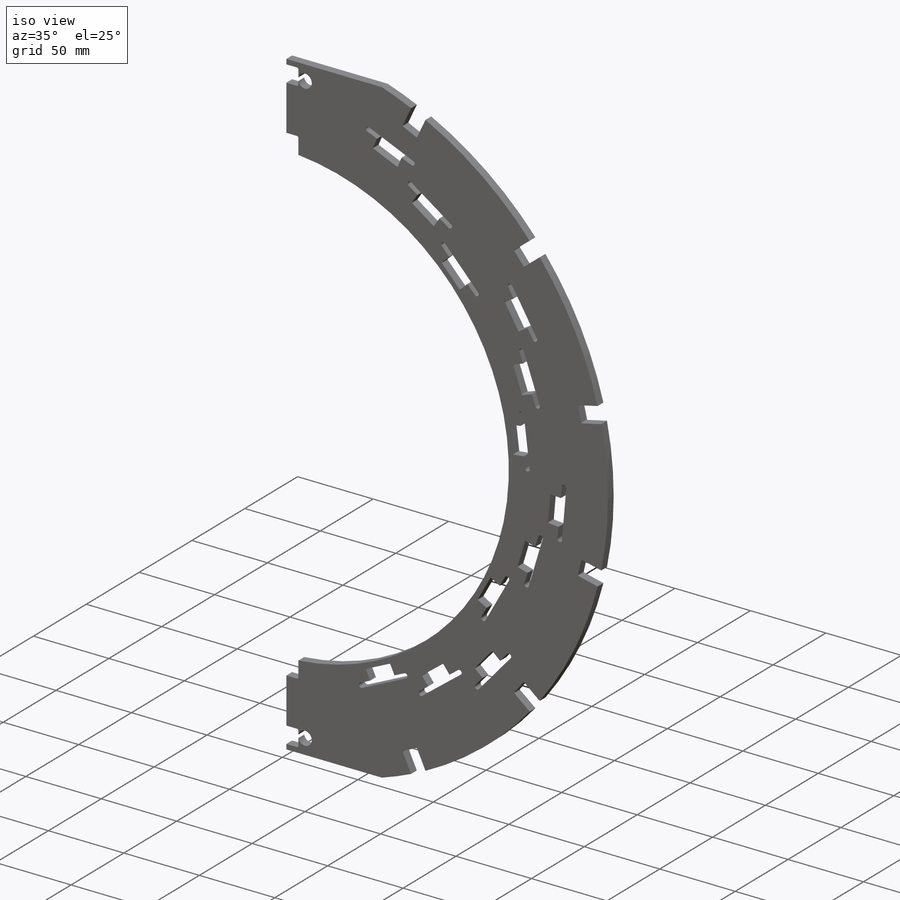
[diagram: iso view]
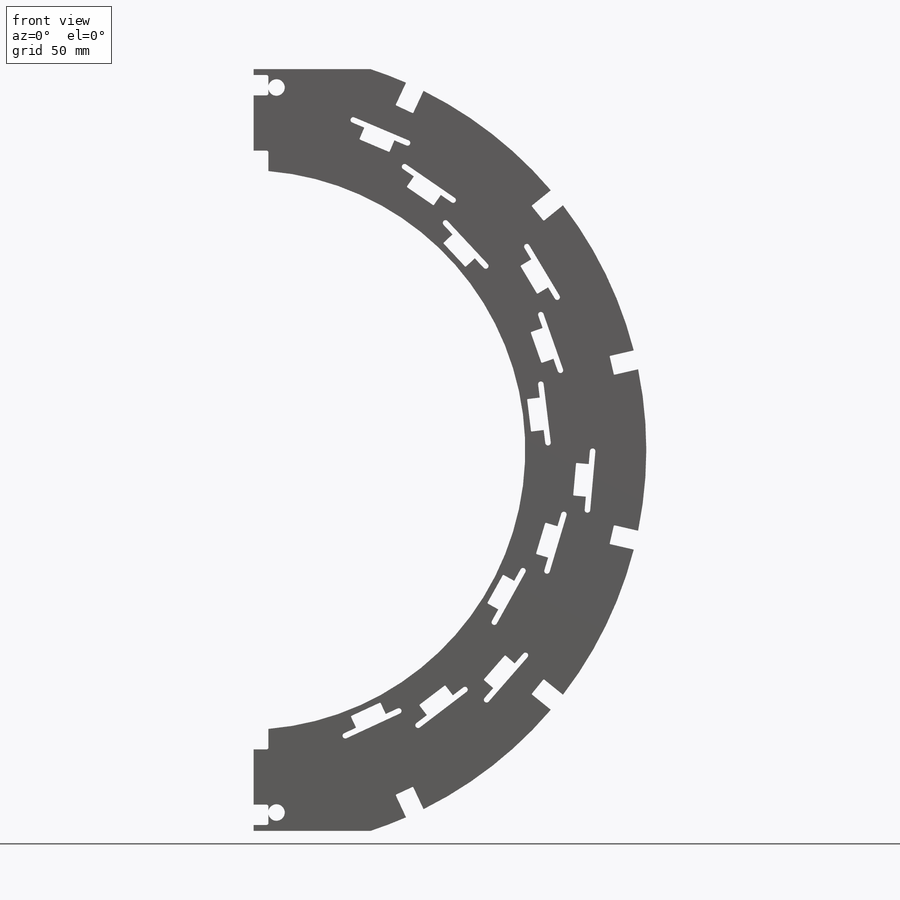
[diagram: front view]
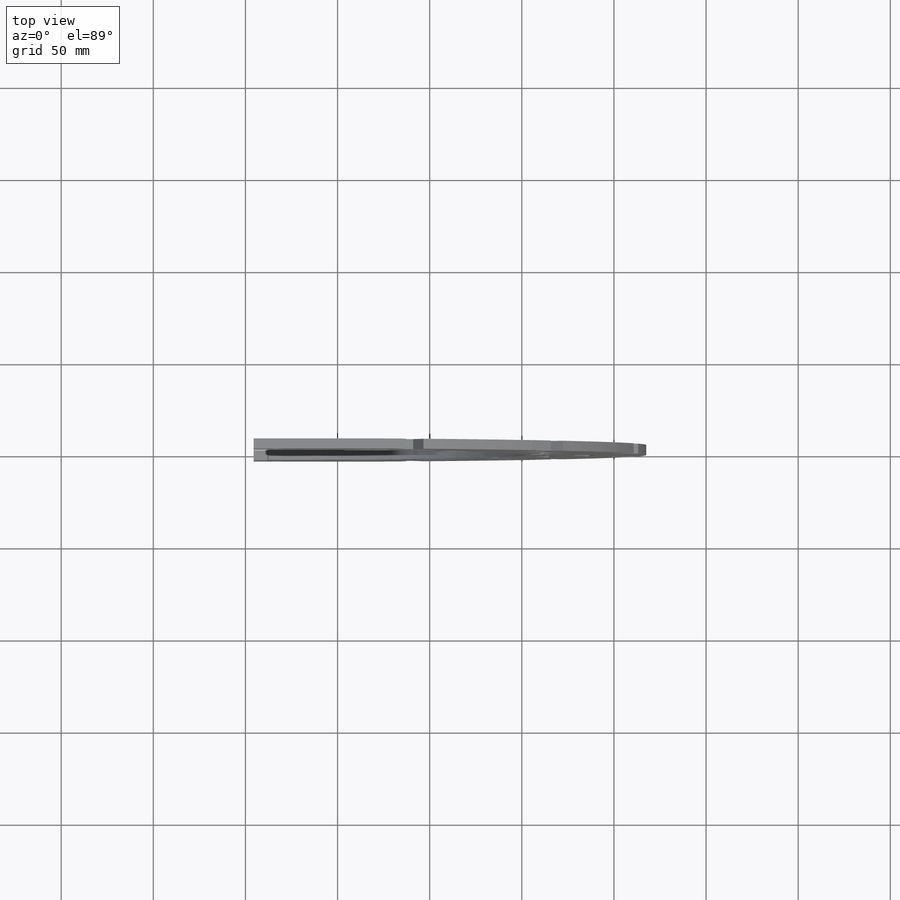
[diagram: top view]
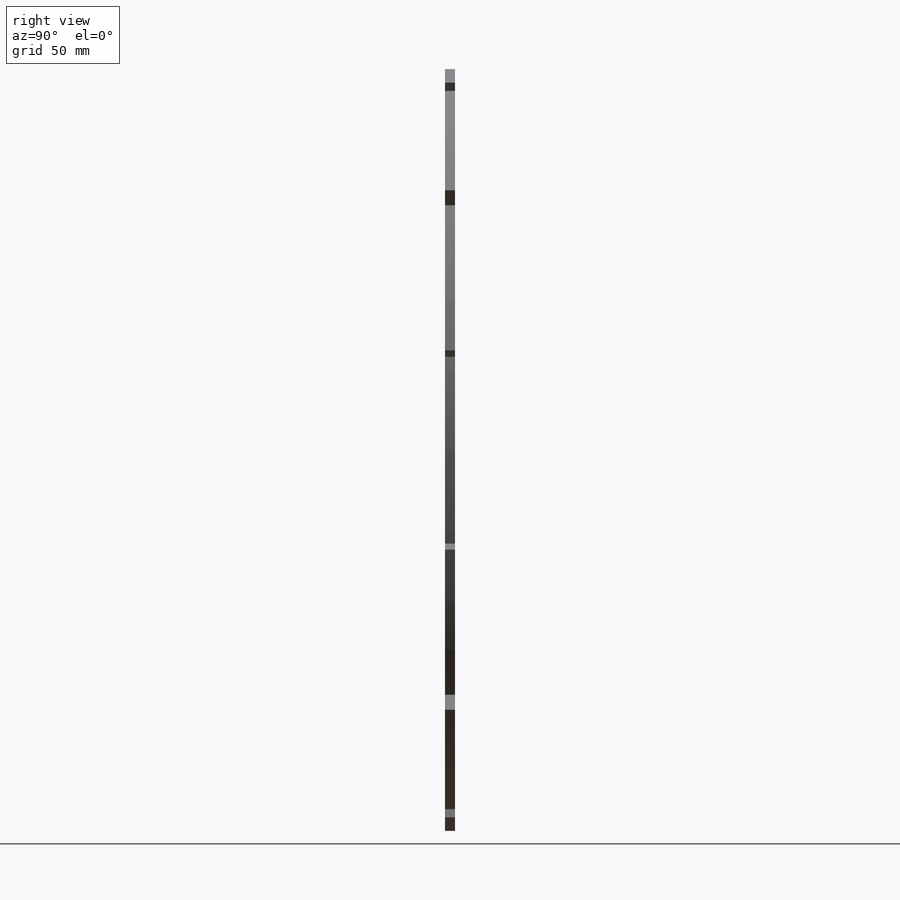
[diagram: right view]
SOLIDWORKS PART (.sldprt)
format: sldprt  version: not decoded by parser v0  size: 1,593,344 bytes
history: native  units: mm
features: sketch x8, cut_extrude x7, pattern_circular x4, plane x3, material x1, extrude x1, fillet x1 + 2 further entries (+13 scaffold rows collapsed)
feature tree (40):
  scaffold x13  (default folders/planes/origin — collapsed)
  material  "Material <not specified>"
  plane  "Plane1"
  plane  "Plane2"
  plane  "Plane3"
  "Axis2"
  "Axis3"
  sketch  "Sketch1"  dims[c1.D1=~217.595316mm c1.D2=3.0mm c1.D3=20.0mm c1.D8=~151.894431mm c1.D6=3.0mm c2.D3=3.0mm c2.D4=12.0mm c2.D5=416.0mm c3.D4=~30.959689mm c4.D4=10.0deg c4.D6=~28.144483mm c5.D6=8.0deg c5.D7=152.4mm c5.D8=~147.440921mm c6.D8=~68.880109deg c6.D9=~71.329219mm c6.D7=290.0mm c7.D9=4.5mm c7.D3=~31.981474mm c8.D3=80.0deg c8.D5=208.0mm c8.D6=20.0mm c8.D4=20.0mm c8.D2=110.0mm c9.D2=16.5deg]
  extrude  "Extrude1"  Depth=5.43mm
  sketch  "Sketch3"  dims[c1.D2=210.5mm c1.D3=2.0mm c1.D1=~12.839455mm c2.D1=8.0deg c3.D1=210.5mm c4.D1=8.0deg c5.D1=0.4807mm c6.D1=9.0deg c6.D4=210.5mm c6.D2=206.75mm c7.D4=0.4807mm c8.D4=~3.865784deg]
  cut_extrude  "Extrude3"  [1 undecoded]
  sketch  "Sketch7"  dims[c1.D6=0.5mm c1.D1=10.5mm c1.D2=12.5mm c1.D3=2.5mm c1.D4=214.063mm c1.D5=0.4807mm c2.D5=25.0deg c2.D2=7.5mm c2.D7=6.0mm]
  cut_extrude  "Cut-Extrude2"  [1 undecoded]
  pattern_circular  "CirPattern2"  Count=6 Angle=130deg
  sketch  "Sketch9"  dims[D3=198.0mm D4=41.0mm D5=8.0mm D6=11.0mm D7=10.0mm D1=0.5mm D2=0.5mm]
  cut_extrude  "Cut-Extrude3"  [1 undecoded]
  fillet  "Fillet1"  Radius=1mm
  sketch  "Sketch12"  dims[c1.D3=0.5mm c1.D1=17.75mm c1.D2=7.4mm c1.D4=23.0mm c1.D5=~151.98391mm c1.D6=~163.786743mm c1.D7=~175.543752mm c1.D8=~19.057175mm c2.D8=~11.133864deg c2.D9=~18.96564mm c3.D9=~11.981345deg c3.D10=0.4807mm c4.D10=~27.373507deg c4.D5=5.28mm c5.D5=~22.968307deg c5.D6=~151.98391mm c5.D7=~163.786743mm c5.D10=~175.543752mm c5.D4=183.0875mm c6.D6=~170.946207mm c6.D7=~158.808528mm c6.D8=5.973mm c7.D8=~34.539868deg c7.D9=5.973mm c8.D9=~46.982438deg]
  cut_extrude  "Stave Mount Hole Extrude4"  [1 undecoded]
  sketch  "Sketch16"  dims[c1.D4=5.0mm c1.D7=3.5mm c1.D8=5.0mm c1.D9=1.0mm c1.D10=1.5mm c1.D11=5.0mm c1.D12=5.0mm c1.D13=5.0mm c1.D14=1.5mm c2.D11=~199.488045mm c2.D8=3.5mm c2.D1=5.28mm c3.D1=~27.373507deg c3.D2=~161.223717mm c4.D2=~11.981345deg c4.D3=~173.02655mm c5.D3=~11.133864deg c5.D4=~161.223717mm c5.D5=~173.02655mm c5.D6=~184.783559mm c5.D8=14.0mm c5.D11=~19.704486mm c5.D12=~19.704486mm c5.D13=~12.704486mm c5.D14=32.0mm c6.D4=~163.223717mm c6.D5=~175.02655mm c6.D6=~186.783559mm c6.D8=19.0mm c7.D4=~163.223717mm c7.D12=23.75mm c7.D5=~175.02655mm c7.D6=~186.783559mm c7.D2=2.425mm c7.D3=2.425mm c8.D4=2.425mm]
  cut_extrude  "Mouse Hole Extrude4"  [1 undecoded]
  pattern_circular  "Stave Mount Hole CirPattern3"  Count=4 Angle=36.052526deg
  sketch  "Sketch14"  dims[D1=32.0mm D2=4.7mm D3=3.0mm]
  cut_extrude  "Cable Slot Extrude6"  [1 undecoded]
  pattern_circular  "Cable Slot CirPattern4"  Count=4 Angle=36.052526deg
  pattern_circular  "Mouse Hole CirPattern5"  Count=4 Angle=36.052526deg
  sketch  "Sketch15"  dims[D1=9.0mm D2=~33.732494mm D3=196.75mm]
  cut_extrude  "Cut-Extrude5"  Depth=8mm
decode coverage: 15 of 21 modeling features carry decoded parameters; 2 rows unclassified (native names shown)
note: ~ marks probable driven/reference dimensions
note: 6 parameter values undecoded
summary: no parameter record found for 6 features
note: suppression state not decoded; provenance and decode notes live in map.json
